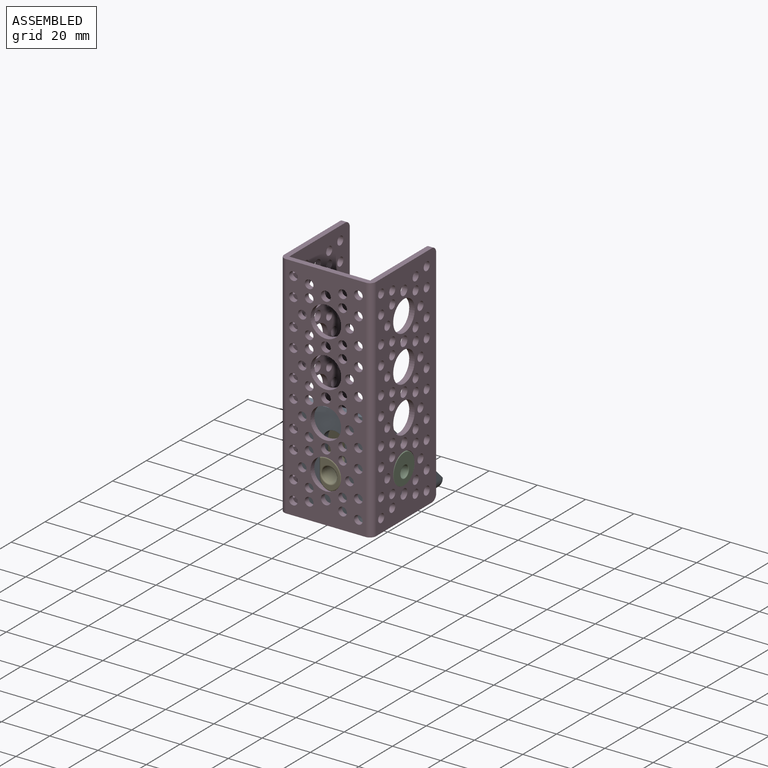
[diagram: assembled view]
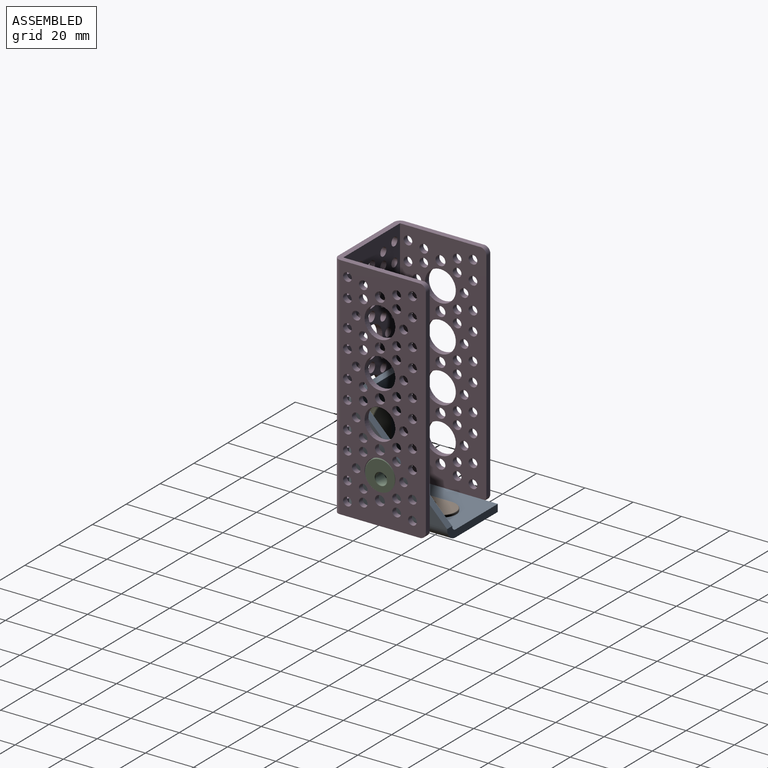
[diagram: assembled view, second angle]
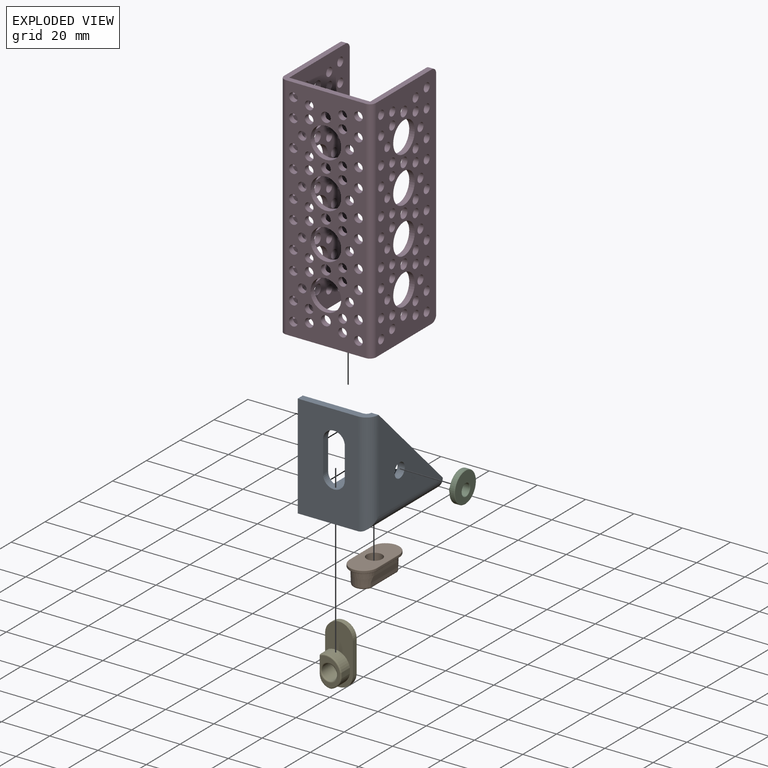
[diagram: exploded view]
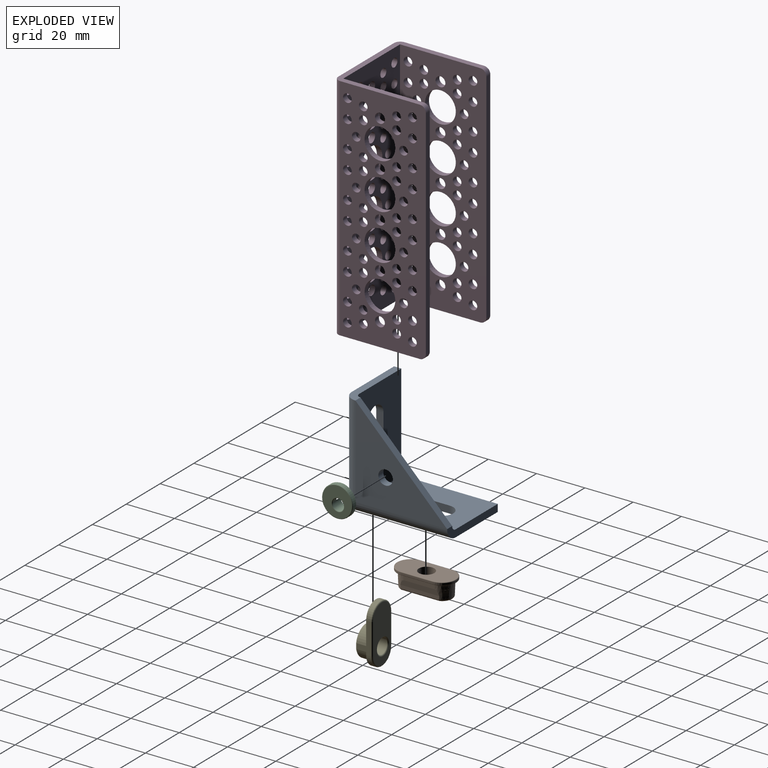
[diagram: exploded view, second angle]
ASSEMBLY  parts=5 mates=6
PART A: 23 faces, bbox 30x43x43 mm
  f0: plane 43x43mm, normal (1,0,0), area 249mm2, adj f3,f4,f5,f7,f8,f9
  f1: plane 38x38mm, normal (-1,0,0), area 693.7mm2, adj f2,f18,f21,f22
  f2: plane 38x38mm, normal (0,-0.71,0.71), area 161.2mm2, adj f1,f3,f4,f6
  f3: plane 30x5mm, normal (0,0,1), area 91.5mm2, adj f0,f2,f8,f9,f20,f21
  f4: plane 30x5mm, normal (0,-1,0), area 91.5mm2, adj f0,f2,f5,f7,f19,f22
  f5: plane 43x25mm, normal (0,0,-1), area 894.4mm2, adj f0,f4,f9,f10,f11,f12,f13,f22
  f6: plane 38x38mm, normal (1,0,0), area 693.7mm2, adj f2,f18,f19,f20
  f7: plane 40x25mm, normal (0,0,1), area 819.4mm2, adj f0,f4,f8,f10,f11,f12,f13,f19
  f8: plane 40x25mm, normal (0,-1,0), area 819.4mm2, adj f0,f3,f7,f14,f15,f16,f17,f20
  f9: plane 43x25mm, normal (0,1,0), area 894.4mm2, adj f0,f3,f5,f14,f15,f16,f17,f21
  f10: cylinder r=4.5mm len=9mm, axis (0,0,1), area 42.4mm2, adj f5,f7,f11,f13
  f11: plane 13x3mm, normal (-1,0,0), area 39mm2, adj f5,f7,f10,f12
  f12: cylinder r=4.5mm len=9mm, axis (0,0,1), area 42.4mm2, adj f5,f7,f11,f13
  f13: plane 13x3mm, normal (1,0,0), area 39mm2, adj f5,f7,f10,f12
  f14: cylinder r=4.5mm len=9mm, axis (0,1,0), area 42.4mm2, adj f8,f9,f15,f17
  f15: plane 13x3mm, normal (-1,0,0), area 39mm2, adj f8,f9,f14,f16
  f16: cylinder r=4.5mm len=9mm, axis (0,1,0), area 42.4mm2, adj f8,f9,f15,f17
  f17: plane 13x3mm, normal (1,0,0), area 39mm2, adj f8,f9,f14,f16
  f18: cylinder r=3mm len=6mm, axis (1,0,0), area 56.5mm2, adj f1,f6
  f19: cylinder r=2mm len=40mm, axis (0,-1,0), area 123.4mm2, adj f4,f6,f7,f20
  f20: cylinder r=2mm len=40mm, axis (0,0,1), area 123.4mm2, adj f3,f6,f8,f19
  f21: cylinder r=5mm len=43mm, axis (0,0,1), area 323.5mm2, adj f1,f3,f9,f22
  f22: cylinder r=5mm len=43mm, axis (0,1,0), area 323.5mm2, adj f1,f4,f5,f21
PART B: 36 faces, bbox 25.5x12.5x7.9 mm
  f0: torus R=5.51mm, axis (0,0,1), area 7.1mm2, adj f1,f3,f18,f20
  f1: cylinder r=0.25mm len=13.01mm, axis (-1,0,0), area 5.2mm2, adj f0,f2,f17,f20
  f2: torus R=5.51mm, axis (0,0,1), area 7.1mm2, adj f1,f3,f16,f20
  f3: cylinder r=0.25mm len=13.01mm, axis (1,0,0), area 5.2mm2, adj f0,f2,f19,f20
  f4: torus R=5.51mm, axis (0,0,1), area 7.1mm2, adj f6,f7,f15,f18
  f5: torus R=5.51mm, axis (0,0,1), area 7.1mm2, adj f6,f7,f15,f16
  f6: cylinder r=0.25mm len=13.01mm, axis (-1,0,0), area 5.2mm2, adj f4,f5,f15,f17
  f7: cylinder r=0.25mm len=13.01mm, axis (1,0,0), area 5.2mm2, adj f4,f5,f15,f19
  f8: torus R=3.66mm, axis (0,0,1), area 1.3mm2, adj f10,f11,f21,f22
  f9: torus R=3.66mm, axis (0,0,1), area 1.3mm2, adj f10,f13,f21,f23
  f10: cylinder r=0.76mm len=13.01mm, axis (-1,0,0), area 1.3mm2, adj f8,f9,f14,f24
  f11: cone r=4.5mm half-angle=2deg, axis (0,0,1), area 31.7mm2, adj f8,f12,f14,f15
  f12: plane 13.01x2.26mm, normal (0,1,-0.03), area 29.4mm2, adj f11,f13,f15,f21
  f13: cone r=4.5mm half-angle=2deg, axis (0,0,1), area 31.7mm2, adj f9,f12,f14,f15
  f14: plane 13.01x2.26mm, normal (0,-1,-0.03), area 29.4mm2, adj f10,f11,f13,f15
  f15: plane 24.03x11.02mm, normal (0,0,-1), area 58.4mm2, adj f4,f5,f6,f7,f11,f12,f13,f14
  f16: cylinder r=5.77mm len=11.53mm, axis (0,0,-1), area 13.8mm2, adj f2,f5,f17,f19
  f17: plane 13.01x0.76mm, normal (0,-1,0), area 9.9mm2, adj f1,f6,f16,f18
  f18: cylinder r=5.77mm len=11.53mm, axis (0,0,-1), area 13.8mm2, adj f0,f4,f17,f19
  f19: plane 13.01x0.76mm, normal (0,1,0), area 9.9mm2, adj f3,f7,f16,f18
  f20: plane 24.03x11.02mm, normal (0,0,1), area 205.9mm2, adj f0,f1,f2,f3,f31
  f21: cylinder r=0.76mm len=13.01mm, axis (-1,0,0), area 1.3mm2, adj f8,f9,f12,f28
  f22: plane 8.81x4.41mm, normal (0,0,1), area 0.1mm2, adj f8,f24,f28,f30
  f23: plane 8.81x4.41mm, normal (0,0,1), area 0.1mm2, adj f9,f24,f28,f29
  f24: plane 15.93x2.21mm, normal (0,-0.99,-0.14), area 33.6mm2, adj f10,f22,f23,f25,f29,f30
  f25: plane 15.93x1.29mm, normal (0,-1,0), area 20.3mm2, adj f24,f29,f30,f32
  f26: plane 19.99x6.53mm, normal (0,0,-1), area 89.5mm2, adj f31,f32,f33,f34,f35
  f27: plane 16.13x1.29mm, normal (0,1,0), area 20.6mm2, adj f28,f29,f30,f35
  f28: plane 16.13x2.21mm, normal (0,0.99,-0.16), area 34mm2, adj f21,f22,f23,f27,f29,f30
  f29: cone r=4.5mm half-angle=2deg, axis (0,0,1), area 39.7mm2, adj f23,f24,f25,f27,f28,f32,f33,f35
  f30: cone r=4.5mm half-angle=2deg, axis (0,0,1), area 39.7mm2, adj f22,f24,f25,f27,f28,f32,f34,f35
  f31: cylinder r=3.24mm len=7.93mm, axis (0,0,1), area 161.3mm2, adj f20,f26
  f32: cylinder r=0.8mm len=15.65mm, axis (-1,0,0), area 19.5mm2, adj f25,f26,f29,f30,f33,f34
  f33: torus R=3.49mm, axis (0,0,1), area 12.1mm2, adj f26,f29,f32,f35
  f34: torus R=3.49mm, axis (0,0,1), area 12.1mm2, adj f26,f30,f32,f35
  f35: cylinder r=0.8mm len=15.87mm, axis (-1,0,0), area 19.8mm2, adj f26,f27,f29,f30,f33,f34
PART C: 13 faces, bbox 13.8x13.8x5.3 mm
  f0: plane 5.22x5.1mm, normal (0,0,-1), area 4.3mm2, adj f8,f9
  f1: plane 2.94x0.18mm, normal (0.67,-0.74,0), area 0.6mm2, adj f2,f5,f7,f8,f9
  f2: cylinder r=3mm len=6mm, axis (0,0,1), area 42mm2, adj f1,f5,f6,f8
  f3: plane 12.22x12.22mm, normal (0,0,1), area 95.4mm2, adj f10,f11
  f4: cylinder r=6.36mm len=12.73mm, axis (0,0,-1), area 71.1mm2, adj f11,f12
  f5: plane 12.22x12.22mm, normal (0,0,-1), area 89.1mm2, adj f1,f2,f6,f7,f12
  f6: plane 2.94x0.18mm, normal (0.67,-0.74,0), area 0.6mm2, adj f2,f5,f7,f8,f9
  f7: cylinder r=2.38mm len=4.78mm, axis (0,0,-1), area 62.8mm2, adj f1,f5,f6,f9,f10
  f8: torus R=2.75mm, axis (0,0,1), area 5.5mm2, adj f0,f1,f2,f6,f9
  f9: torus R=2.64mm, axis (0,0,1), area 4.4mm2, adj f0,f1,f6,f7,f8
  f10: torus R=2.64mm, axis (0,0,1), area 6.2mm2, adj f3,f7
  f11: torus R=6.11mm, axis (0,0,1), area 15.7mm2, adj f3,f4
  f12: torus R=6.11mm, axis (0,0,1), area 15.7mm2, adj f4,f5
PART D: 187 faces, bbox 38.1x95.3x38.1 mm
  f0: plane 90.17x2.29mm, normal (0,0,1), area 206.1mm2, adj f1,f7,f182,f183
  f1: plane 95.25x35.56mm, normal (1,0,0), area 2334mm2, adj f0,f2,f4,f10,f11,f12,f13,f14
  f2: plane 38.1x35.56mm, normal (0,1,0), area 236.5mm2, adj f1,f3,f6,f7,f8,f9,f183,f184
  f3: plane 95.25x35.56mm, normal (-1,0,0), area 2334mm2, adj f2,f4,f5,f124,f125,f126,f127,f128
  f4: plane 38.1x35.56mm, normal (0,-1,0), area 236.5mm2, adj f1,f3,f6,f7,f8,f9,f181,f182
  f5: plane 90.17x2.29mm, normal (0,0,1), area 206.1mm2, adj f3,f9,f181,f185
  f6: plane 95.25x33.02mm, normal (0,0,-1), area 2094.8mm2, adj f2,f4,f67,f68,f69,f70,f71,f72
  f7: plane 95.25x35.81mm, normal (-1,0,0), area 2358.2mm2, adj f0,f2,f4,f8,f10,f11,f12,f13
  f8: plane 95.25x33.53mm, normal (0,0,1), area 2143.2mm2, adj f2,f4,f7,f9,f67,f68,f69,f70
  f9: plane 95.25x35.81mm, normal (1,0,0), area 2358.2mm2, adj f2,f4,f5,f8,f124,f125,f126,f127
  f10: cylinder r=6.36mm len=12.73mm, axis (1,0,0), area 91.4mm2, adj f1,f7
  f11: cylinder r=6.36mm len=12.73mm, axis (1,0,0), area 91.4mm2, adj f1,f7
  f12: cylinder r=6.36mm len=12.73mm, axis (1,0,0), area 91.4mm2, adj f1,f7
  f13: cylinder r=6.36mm len=12.73mm, axis (1,0,0), area 91.4mm2, adj f1,f7
  f14: cylinder r=1.78mm len=3.56mm, axis (1,0,0), area 25.5mm2, adj f1,f7
  f15: cylinder r=1.78mm len=3.56mm, axis (1,0,0), area 25.5mm2, adj f1,f7
  f16: cylinder r=1.78mm len=3.56mm, axis (1,0,0), area 25.5mm2, adj f1,f7
  f17: cylinder r=1.78mm len=3.56mm, axis (1,0,0), area 25.5mm2, adj f1,f7
  f18: cylinder r=1.78mm len=3.56mm, axis (1,0,0), area 25.5mm2, adj f1,f7
  f19: cylinder r=1.78mm len=3.56mm, axis (1,0,0), area 25.5mm2, adj f1,f7
  f20: cylinder r=1.78mm len=3.56mm, axis (1,0,0), area 25.5mm2, adj f1,f7
  f21: cylinder r=1.78mm len=3.56mm, axis (1,0,0), area 25.5mm2, adj f1,f7
  f22: cylinder r=1.78mm len=3.56mm, axis (1,0,0), area 25.5mm2, adj f1,f7
  f23: cylinder r=1.78mm len=3.56mm, axis (1,0,0), area 25.5mm2, adj f1,f7
  f24: cylinder r=1.78mm len=3.56mm, axis (1,0,0), area 25.5mm2, adj f1,f7
  f25: cylinder r=1.78mm len=3.56mm, axis (1,0,0), area 25.5mm2, adj f1,f7
  f26: cylinder r=1.78mm len=3.56mm, axis (1,0,0), area 25.5mm2, adj f1,f7
  f27: cylinder r=1.78mm len=3.56mm, axis (1,0,0), area 25.5mm2, adj f1,f7
  f28: cylinder r=1.78mm len=3.56mm, axis (1,0,0), area 25.5mm2, adj f1,f7
  f29: cylinder r=1.78mm len=3.56mm, axis (1,0,0), area 25.5mm2, adj f1,f7
  f30: cylinder r=1.78mm len=3.56mm, axis (1,0,0), area 25.5mm2, adj f1,f7
  f31: cylinder r=1.78mm len=3.56mm, axis (1,0,0), area 25.5mm2, adj f1,f7
  f32: cylinder r=1.78mm len=3.56mm, axis (1,0,0), area 25.5mm2, adj f1,f7
  f33: cylinder r=1.78mm len=3.56mm, axis (1,0,0), area 25.5mm2, adj f1,f7
  f34: cylinder r=1.78mm len=3.56mm, axis (1,0,0), area 25.5mm2, adj f1,f7
  f35: cylinder r=1.78mm len=3.56mm, axis (1,0,0), area 25.5mm2, adj f1,f7
  f36: cylinder r=1.78mm len=3.56mm, axis (1,0,0), area 25.5mm2, adj f1,f7
  f37: cylinder r=1.78mm len=3.56mm, axis (1,0,0), area 25.5mm2, adj f1,f7
  f38: cylinder r=1.78mm len=3.56mm, axis (1,0,0), area 25.5mm2, adj f1,f7
  f39: cylinder r=1.78mm len=3.56mm, axis (1,0,0), area 25.5mm2, adj f1,f7
  f40: cylinder r=1.78mm len=3.56mm, axis (1,0,0), area 25.5mm2, adj f1,f7
  f41: cylinder r=1.78mm len=3.56mm, axis (1,0,0), area 25.5mm2, adj f1,f7
  f42: cylinder r=1.78mm len=3.56mm, axis (1,0,0), area 25.5mm2, adj f1,f7
  f43: cylinder r=1.78mm len=3.56mm, axis (1,0,0), area 25.5mm2, adj f1,f7
  f44: cylinder r=1.78mm len=3.56mm, axis (1,0,0), area 25.5mm2, adj f1,f7
  f45: cylinder r=1.78mm len=3.56mm, axis (1,0,0), area 25.5mm2, adj f1,f7
  f46: cylinder r=1.78mm len=3.56mm, axis (1,0,0), area 25.5mm2, adj f1,f7
  f47: cylinder r=1.78mm len=3.56mm, axis (1,0,0), area 25.5mm2, adj f1,f7
  f48: cylinder r=1.78mm len=3.56mm, axis (1,0,0), area 25.5mm2, adj f1,f7
  f49: cylinder r=1.78mm len=3.56mm, axis (1,0,0), area 25.5mm2, adj f1,f7
  f50: cylinder r=1.78mm len=3.56mm, axis (1,0,0), area 25.5mm2, adj f1,f7
  f51: cylinder r=1.78mm len=3.56mm, axis (1,0,0), area 25.5mm2, adj f1,f7
  f52: cylinder r=1.78mm len=3.56mm, axis (1,0,0), area 25.5mm2, adj f1,f7
  f53: cylinder r=1.78mm len=3.56mm, axis (1,0,0), area 25.5mm2, adj f1,f7
  f54: cylinder r=1.78mm len=3.56mm, axis (1,0,0), area 25.5mm2, adj f1,f7
  f55: cylinder r=1.78mm len=3.56mm, axis (1,0,0), area 25.5mm2, adj f1,f7
  f56: cylinder r=1.78mm len=3.56mm, axis (1,0,0), area 25.5mm2, adj f1,f7
  f57: cylinder r=1.78mm len=3.56mm, axis (1,0,0), area 25.5mm2, adj f1,f7
  f58: cylinder r=1.78mm len=3.56mm, axis (1,0,0), area 25.5mm2, adj f1,f7
  f59: cylinder r=1.78mm len=3.56mm, axis (1,0,0), area 25.5mm2, adj f1,f7
  f60: cylinder r=1.78mm len=3.56mm, axis (1,0,0), area 25.5mm2, adj f1,f7
  f61: cylinder r=1.78mm len=3.56mm, axis (1,0,0), area 25.5mm2, adj f1,f7
  f62: cylinder r=2.03mm len=4.06mm, axis (1,0,0), area 29.2mm2, adj f1,f7
  f63: cylinder r=2.03mm len=4.06mm, axis (1,0,0), area 29.2mm2, adj f1,f7
  f64: cylinder r=2.03mm len=4.06mm, axis (1,0,0), area 29.2mm2, adj f1,f7
  f65: cylinder r=2.03mm len=4.06mm, axis (1,0,0), area 29.2mm2, adj f1,f7
  f66: cylinder r=2.03mm len=4.06mm, axis (1,0,0), area 29.2mm2, adj f1,f7
  f67: cylinder r=6.36mm len=12.73mm, axis (0,0,-1), area 91.4mm2, adj f6,f8
  f68: cylinder r=6.36mm len=12.73mm, axis (0,0,-1), area 91.4mm2, adj f6,f8
  f69: cylinder r=6.36mm len=12.73mm, axis (0,0,-1), area 91.4mm2, adj f6,f8
  f70: cylinder r=6.36mm len=12.73mm, axis (0,0,-1), area 91.4mm2, adj f6,f8
  f71: cylinder r=2.03mm len=4.06mm, axis (0,0,-1), area 29.2mm2, adj f6,f8
  f72: cylinder r=2.03mm len=4.06mm, axis (0,0,-1), area 29.2mm2, adj f6,f8
  f73: cylinder r=2.03mm len=4.06mm, axis (0,0,-1), area 29.2mm2, adj f6,f8
  f74: cylinder r=2.03mm len=4.06mm, axis (0,0,-1), area 29.2mm2, adj f6,f8
  f75: cylinder r=2.03mm len=4.06mm, axis (0,0,-1), area 29.2mm2, adj f6,f8
  f76: cylinder r=1.78mm len=3.56mm, axis (0,0,-1), area 25.5mm2, adj f6,f8
  f77: cylinder r=1.78mm len=3.56mm, axis (0,0,-1), area 25.5mm2, adj f6,f8
  f78: cylinder r=1.78mm len=3.56mm, axis (0,0,-1), area 25.5mm2, adj f6,f8
  f79: cylinder r=1.78mm len=3.56mm, axis (0,0,-1), area 25.5mm2, adj f6,f8
  f80: cylinder r=1.78mm len=3.56mm, axis (0,0,-1), area 25.5mm2, adj f6,f8
  f81: cylinder r=1.78mm len=3.56mm, axis (0,0,-1), area 25.5mm2, adj f6,f8
  f82: cylinder r=1.78mm len=3.56mm, axis (0,0,-1), area 25.5mm2, adj f6,f8
  f83: cylinder r=1.78mm len=3.56mm, axis (0,0,-1), area 25.5mm2, adj f6,f8
  f84: cylinder r=1.78mm len=3.56mm, axis (0,0,-1), area 25.5mm2, adj f6,f8
  f85: cylinder r=1.78mm len=3.56mm, axis (0,0,-1), area 25.5mm2, adj f6,f8
  f86: cylinder r=1.78mm len=3.56mm, axis (0,0,-1), area 25.5mm2, adj f6,f8
  f87: cylinder r=1.78mm len=3.56mm, axis (0,0,-1), area 25.5mm2, adj f6,f8
  f88: cylinder r=1.78mm len=3.56mm, axis (0,0,-1), area 25.5mm2, adj f6,f8
  f89: cylinder r=1.78mm len=3.56mm, axis (0,0,-1), area 25.5mm2, adj f6,f8
  f90: cylinder r=1.78mm len=3.56mm, axis (0,0,-1), area 25.5mm2, adj f6,f8
  f91: cylinder r=1.78mm len=3.56mm, axis (0,0,-1), area 25.5mm2, adj f6,f8
  f92: cylinder r=1.78mm len=3.56mm, axis (0,0,-1), area 25.5mm2, adj f6,f8
  f93: cylinder r=1.78mm len=3.56mm, axis (0,0,-1), area 25.5mm2, adj f6,f8
  f94: cylinder r=1.78mm len=3.56mm, axis (0,0,-1), area 25.5mm2, adj f6,f8
  f95: cylinder r=1.78mm len=3.56mm, axis (0,0,-1), area 25.5mm2, adj f6,f8
  f96: cylinder r=1.78mm len=3.56mm, axis (0,0,-1), area 25.5mm2, adj f6,f8
  f97: cylinder r=1.78mm len=3.56mm, axis (0,0,-1), area 25.5mm2, adj f6,f8
  f98: cylinder r=1.78mm len=3.56mm, axis (0,0,-1), area 25.5mm2, adj f6,f8
  f99: cylinder r=1.78mm len=3.56mm, axis (0,0,-1), area 25.5mm2, adj f6,f8
  f100: cylinder r=1.78mm len=3.56mm, axis (0,0,-1), area 25.5mm2, adj f6,f8
  f101: cylinder r=1.78mm len=3.56mm, axis (0,0,-1), area 25.5mm2, adj f6,f8
  f102: cylinder r=1.78mm len=3.56mm, axis (0,0,-1), area 25.5mm2, adj f6,f8
  f103: cylinder r=1.78mm len=3.56mm, axis (0,0,-1), area 25.5mm2, adj f6,f8
  f104: cylinder r=1.78mm len=3.56mm, axis (0,0,-1), area 25.5mm2, adj f6,f8
  f105: cylinder r=1.78mm len=3.56mm, axis (0,0,-1), area 25.5mm2, adj f6,f8
  f106: cylinder r=1.78mm len=3.56mm, axis (0,0,-1), area 25.5mm2, adj f6,f8
  f107: cylinder r=1.78mm len=3.56mm, axis (0,0,-1), area 25.5mm2, adj f6,f8
  f108: cylinder r=1.78mm len=3.56mm, axis (0,0,-1), area 25.5mm2, adj f6,f8
  f109: cylinder r=1.78mm len=3.56mm, axis (0,0,-1), area 25.5mm2, adj f6,f8
  f110: cylinder r=1.78mm len=3.56mm, axis (0,0,-1), area 25.5mm2, adj f6,f8
  f111: cylinder r=1.78mm len=3.56mm, axis (0,0,-1), area 25.5mm2, adj f6,f8
  f112: cylinder r=1.78mm len=3.56mm, axis (0,0,-1), area 25.5mm2, adj f6,f8
  f113: cylinder r=1.78mm len=3.56mm, axis (0,0,-1), area 25.5mm2, adj f6,f8
  f114: cylinder r=1.78mm len=3.56mm, axis (0,0,-1), area 25.5mm2, adj f6,f8
  f115: cylinder r=1.78mm len=3.56mm, axis (0,0,-1), area 25.5mm2, adj f6,f8
  f116: cylinder r=1.78mm len=3.56mm, axis (0,0,-1), area 25.5mm2, adj f6,f8
  f117: cylinder r=1.78mm len=3.56mm, axis (0,0,-1), area 25.5mm2, adj f6,f8
  f118: cylinder r=1.78mm len=3.56mm, axis (0,0,-1), area 25.5mm2, adj f6,f8
  f119: cylinder r=1.78mm len=3.56mm, axis (0,0,-1), area 25.5mm2, adj f6,f8
  f120: cylinder r=1.78mm len=3.56mm, axis (0,0,-1), area 25.5mm2, adj f6,f8
  f121: cylinder r=1.78mm len=3.56mm, axis (0,0,-1), area 25.5mm2, adj f6,f8
  f122: cylinder r=1.78mm len=3.56mm, axis (0,0,-1), area 25.5mm2, adj f6,f8
  f123: cylinder r=1.78mm len=3.56mm, axis (0,0,-1), area 25.5mm2, adj f6,f8
  f124: cylinder r=6.36mm len=12.73mm, axis (-1,0,0), area 91.4mm2, adj f3,f9
  f125: cylinder r=6.36mm len=12.73mm, axis (-1,0,0), area 91.4mm2, adj f3,f9
  f126: cylinder r=6.36mm len=12.73mm, axis (-1,0,0), area 91.4mm2, adj f3,f9
  f127: cylinder r=6.36mm len=12.73mm, axis (-1,0,0), area 91.4mm2, adj f3,f9
  f128: cylinder r=1.78mm len=3.56mm, axis (-1,0,0), area 25.5mm2, adj f3,f9
  f129: cylinder r=1.78mm len=3.56mm, axis (-1,0,0), area 25.5mm2, adj f3,f9
  f130: cylinder r=1.78mm len=3.56mm, axis (-1,0,0), area 25.5mm2, adj f3,f9
  f131: cylinder r=1.78mm len=3.56mm, axis (-1,0,0), area 25.5mm2, adj f3,f9
  f132: cylinder r=1.78mm len=3.56mm, axis (-1,0,0), area 25.5mm2, adj f3,f9
  f133: cylinder r=1.78mm len=3.56mm, axis (-1,0,0), area 25.5mm2, adj f3,f9
  f134: cylinder r=1.78mm len=3.56mm, axis (-1,0,0), area 25.5mm2, adj f3,f9
  f135: cylinder r=1.78mm len=3.56mm, axis (-1,0,0), area 25.5mm2, adj f3,f9
  f136: cylinder r=1.78mm len=3.56mm, axis (-1,0,0), area 25.5mm2, adj f3,f9
  f137: cylinder r=1.78mm len=3.56mm, axis (-1,0,0), area 25.5mm2, adj f3,f9
  f138: cylinder r=1.78mm len=3.56mm, axis (-1,0,0), area 25.5mm2, adj f3,f9
  f139: cylinder r=1.78mm len=3.56mm, axis (-1,0,0), area 25.5mm2, adj f3,f9
  f140: cylinder r=1.78mm len=3.56mm, axis (-1,0,0), area 25.5mm2, adj f3,f9
  f141: cylinder r=1.78mm len=3.56mm, axis (-1,0,0), area 25.5mm2, adj f3,f9
  f142: cylinder r=1.78mm len=3.56mm, axis (-1,0,0), area 25.5mm2, adj f3,f9
  f143: cylinder r=1.78mm len=3.56mm, axis (-1,0,0), area 25.5mm2, adj f3,f9
  f144: cylinder r=1.78mm len=3.56mm, axis (-1,0,0), area 25.5mm2, adj f3,f9
  f145: cylinder r=1.78mm len=3.56mm, axis (-1,0,0), area 25.5mm2, adj f3,f9
  f146: cylinder r=1.78mm len=3.56mm, axis (-1,0,0), area 25.5mm2, adj f3,f9
  f147: cylinder r=1.78mm len=3.56mm, axis (-1,0,0), area 25.5mm2, adj f3,f9
  f148: cylinder r=1.78mm len=3.56mm, axis (-1,0,0), area 25.5mm2, adj f3,f9
  f149: cylinder r=1.78mm len=3.56mm, axis (-1,0,0), area 25.5mm2, adj f3,f9
  f150: cylinder r=1.78mm len=3.56mm, axis (-1,0,0), area 25.5mm2, adj f3,f9
  f151: cylinder r=1.78mm len=3.56mm, axis (-1,0,0), area 25.5mm2, adj f3,f9
  f152: cylinder r=1.78mm len=3.56mm, axis (-1,0,0), area 25.5mm2, adj f3,f9
  f153: cylinder r=1.78mm len=3.56mm, axis (-1,0,0), area 25.5mm2, adj f3,f9
  f154: cylinder r=1.78mm len=3.56mm, axis (-1,0,0), area 25.5mm2, adj f3,f9
  f155: cylinder r=1.78mm len=3.56mm, axis (-1,0,0), area 25.5mm2, adj f3,f9
  f156: cylinder r=1.78mm len=3.56mm, axis (-1,0,0), area 25.5mm2, adj f3,f9
  f157: cylinder r=1.78mm len=3.56mm, axis (-1,0,0), area 25.5mm2, adj f3,f9
  f158: cylinder r=1.78mm len=3.56mm, axis (-1,0,0), area 25.5mm2, adj f3,f9
  f159: cylinder r=1.78mm len=3.56mm, axis (-1,0,0), area 25.5mm2, adj f3,f9
  f160: cylinder r=1.78mm len=3.56mm, axis (-1,0,0), area 25.5mm2, adj f3,f9
  f161: cylinder r=1.78mm len=3.56mm, axis (-1,0,0), area 25.5mm2, adj f3,f9
  f162: cylinder r=1.78mm len=3.56mm, axis (-1,0,0), area 25.5mm2, adj f3,f9
  f163: cylinder r=1.78mm len=3.56mm, axis (-1,0,0), area 25.5mm2, adj f3,f9
  f164: cylinder r=1.78mm len=3.56mm, axis (-1,0,0), area 25.5mm2, adj f3,f9
  f165: cylinder r=1.78mm len=3.56mm, axis (-1,0,0), area 25.5mm2, adj f3,f9
  f166: cylinder r=1.78mm len=3.56mm, axis (-1,0,0), area 25.5mm2, adj f3,f9
  f167: cylinder r=1.78mm len=3.56mm, axis (-1,0,0), area 25.5mm2, adj f3,f9
  f168: cylinder r=1.78mm len=3.56mm, axis (-1,0,0), area 25.5mm2, adj f3,f9
  f169: cylinder r=1.78mm len=3.56mm, axis (-1,0,0), area 25.5mm2, adj f3,f9
  f170: cylinder r=1.78mm len=3.56mm, axis (-1,0,0), area 25.5mm2, adj f3,f9
  f171: cylinder r=1.78mm len=3.56mm, axis (-1,0,0), area 25.5mm2, adj f3,f9
  f172: cylinder r=1.78mm len=3.56mm, axis (-1,0,0), area 25.5mm2, adj f3,f9
  f173: cylinder r=1.78mm len=3.56mm, axis (-1,0,0), area 25.5mm2, adj f3,f9
  f174: cylinder r=1.78mm len=3.56mm, axis (-1,0,0), area 25.5mm2, adj f3,f9
  f175: cylinder r=1.78mm len=3.56mm, axis (-1,0,0), area 25.5mm2, adj f3,f9
  f176: cylinder r=2.03mm len=4.06mm, axis (-1,0,0), area 29.2mm2, adj f3,f9
  f177: cylinder r=2.03mm len=4.06mm, axis (-1,0,0), area 29.2mm2, adj f3,f9
  f178: cylinder r=2.03mm len=4.06mm, axis (-1,0,0), area 29.2mm2, adj f3,f9
  f179: cylinder r=2.03mm len=4.06mm, axis (-1,0,0), area 29.2mm2, adj f3,f9
  f180: cylinder r=2.03mm len=4.06mm, axis (-1,0,0), area 29.2mm2, adj f3,f9
  f181: cylinder r=2.54mm len=2.54mm, axis (1,0,0), area 9.1mm2, adj f3,f4,f5,f9
  f182: cylinder r=2.54mm len=2.54mm, axis (1,0,0), area 9.1mm2, adj f0,f1,f4,f7
  f183: cylinder r=2.54mm len=2.54mm, axis (-1,0,0), area 9.1mm2, adj f0,f1,f2,f7
  f184: cylinder r=2.54mm len=95.25mm, axis (0,-1,0), area 380mm2, adj f1,f2,f4,f6
  f185: cylinder r=2.54mm len=2.54mm, axis (-1,0,0), area 9.1mm2, adj f2,f3,f5,f9
  f186: cylinder r=2.54mm len=95.25mm, axis (0,1,0), area 380mm2, adj f2,f3,f4,f6
PART E: 34 faces, bbox 12.5x7.9x25.5 mm
  f0: torus R=5.85mm, axis (0,-1,0), area 8.8mm2, adj f7,f8,f25,f32
  f1: plane 24.53x11.53mm, normal (0,-1,0), area 162.3mm2, adj f2,f3,f4,f5,f8,f9,f10,f11
  f2: plane 13x2.03mm, normal (-1,0,0), area 26.4mm2, adj f1,f3,f5,f14
  f3: cylinder r=5.77mm len=11.53mm, axis (0,-1,0), area 36.8mm2, adj f1,f2,f4,f15
  f4: plane 13x2.03mm, normal (1,0,0), area 26.4mm2, adj f1,f3,f5,f17
  f5: cylinder r=5.77mm len=11.53mm, axis (0,-1,0), area 36.8mm2, adj f1,f2,f4,f16
  f6: plane 23.52x10.52mm, normal (0,1,0), area 180.9mm2, adj f14,f15,f16,f17,f18
  f7: plane 11.4x7.98mm, normal (0,-1,0), area 32.6mm2, adj f0,f19,f20,f24,f28,f29,f31
  f8: cylinder r=6.36mm len=8.68mm, axis (0,1,0), area 54mm2, adj f0,f1,f23,f33
  f9: plane 6.96x4.81mm, normal (-1,0,0), area 33.3mm2, adj f1,f10,f29,f30,f31,f33
  f10: cylinder r=4.5mm len=4.78mm, axis (0,1,0), area 34.5mm2, adj f1,f9,f26,f28
  f11: cylinder r=6.36mm len=4.86mm, axis (0,1,0), area 32.1mm2, adj f1,f20,f21,f26
  f12: plane 4.78x2.14mm, normal (1,0,0), area 10.2mm2, adj f1,f21,f23,f24
  f13: cylinder r=3.17mm len=6.81mm, axis (0,-1,0), area 135.9mm2, adj f18,f19
  f14: cylinder r=0.51mm len=13mm, axis (0,0,-1), area 10.4mm2, adj f2,f6,f15,f16
  f15: torus R=5.26mm, axis (0,1,0), area 14mm2, adj f3,f6,f14,f17
  f16: torus R=5.26mm, axis (0,1,0), area 14mm2, adj f5,f6,f14,f17
  f17: cylinder r=0.51mm len=13mm, axis (0,0,1), area 10.4mm2, adj f4,f6,f15,f16
  f18: torus R=3.68mm, axis (0,1,0), area 16.8mm2, adj f6,f13
  f19: torus R=3.68mm, axis (0,-1,0), area 16.8mm2, adj f7,f13,f30
  f20: torus R=5.85mm, axis (0,-1,0), area 5.2mm2, adj f7,f11,f22,f27
  f21: cylinder r=0.51mm len=4.78mm, axis (0,1,0), area 0.4mm2, adj f1,f11,f12,f22
  f22: sphere r=0.51mm, area 0mm2, adj f20,f21,f24
  f23: cylinder r=0.51mm len=4.78mm, axis (0,1,0), area 0.4mm2, adj f1,f8,f12,f25
  f24: cylinder r=0.51mm len=2.14mm, axis (0,0,1), area 1.7mm2, adj f7,f12,f22,f25
  f25: sphere r=0.51mm, area 0mm2, adj f0,f23,f24
  f26: cylinder r=0.51mm len=4.78mm, axis (0,1,0), area 0.7mm2, adj f1,f10,f11,f27
  f27: sphere r=0.51mm, area 0.1mm2, adj f20,f26,f28
  f28: torus R=3.99mm, axis (0,-1,0), area 5.5mm2, adj f7,f10,f27,f29
  f29: cylinder r=0.51mm len=0.51mm, axis (0,0,1), area 0.3mm2, adj f7,f9,f28,f30
  f30: bspline ~2.84x0.61mm, area 1.5mm2, adj f9,f19,f29,f31
  f31: cylinder r=0.51mm len=4.26mm, axis (0,0,1), area 3.4mm2, adj f7,f9,f30,f32
  f32: sphere r=0.51mm, area 0.3mm2, adj f0,f31,f33
  f33: cylinder r=0.51mm len=4.78mm, axis (0,1,0), area 2.9mm2, adj f1,f8,f9,f32
PLACE A rot(axis=(0,0,1),180deg) t=(0,-17.5,-3)mm
PLACE B rot(axis=(0,0,-1),90deg) t=(0,6.5,-0.25)mm
PLACE C rot(axis=(-0.58,0.58,-0.58),120deg) t=(15,0.25,14.42)mm
PLACE D rot(axis=(0,-0.71,-0.71),180deg) t=(17.29,-19.79,92.25)mm
PLACE E at identity
MATE planar A.f5 <-> D.f4  axis (0,0,-1) through (10,-17.5,-3)mm
MATE fastened D.f10 <-> C.f3  axis (1,0,0) through (17.29,-0.74,16.05)mm
MATE planar A.f9 <-> D.f73  axis (0,-1,0) through (-3,-17.5,18)mm
MATE planar A.f1 <-> D.f20  axis (1,0,0) through (15,0.17,14.67)mm
MATE fastened A.f12 <-> B.f2  axis (0,0,1) through (0,13,0)mm
MATE fastened E.f0 <-> D.f70  axis (0,-1,0) through (-1.76,-19.79,16.05)mm
